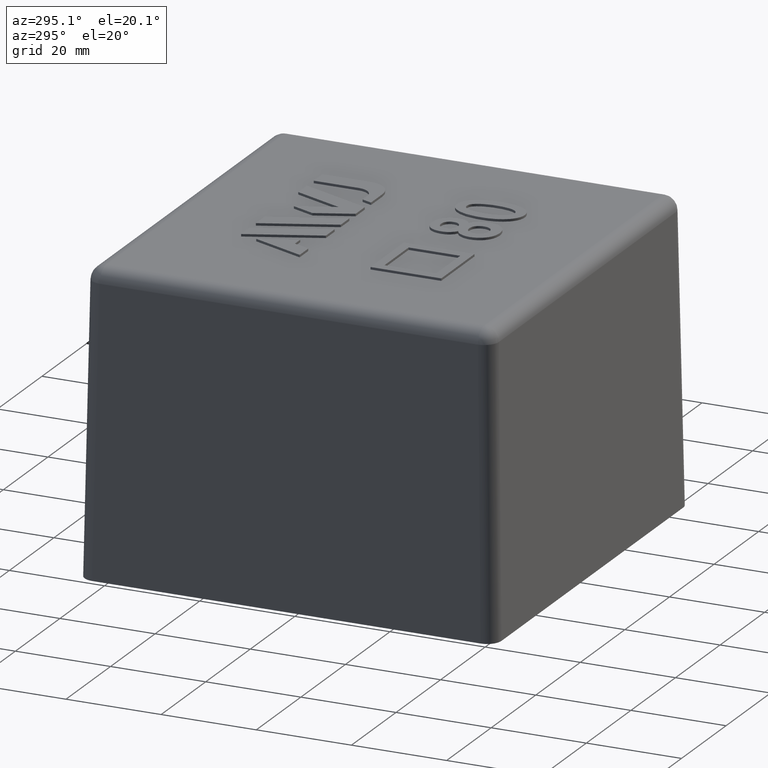
[diagram: clean part render]
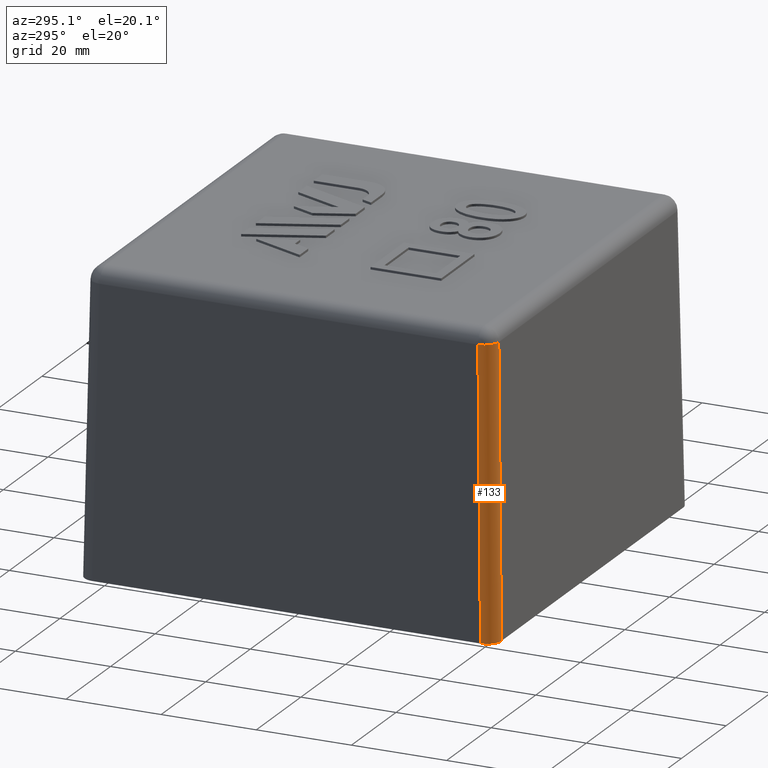
[diagram: same view with one face highlighted and labeled with its STEP entity id]
A machine part, auxiliary view. The second image highlights one B-rep face of the part: STEP entity #133.
In plain terms, the highlighted cylindrical surface (edge-blend (fillet) strip) has radius 3 mm, axis along (0.0174, 0.0174, 0.9997).
Its self-contained STEP definition (entity closure, byte-faithful):
#133 = ADVANCED_FACE( '', ( #281 ), #282, .T. );
#281 = FACE_OUTER_BOUND( '', #459, .T. );
#282 = CYLINDRICAL_SURFACE( '', #460, 3.00000000000000 );
#459 = EDGE_LOOP( '', ( #1012, #1013, #1014, #1015 ) );
#460 = AXIS2_PLACEMENT_3D( '', #1016, #1017, #1018 );
#1012 = ORIENTED_EDGE( '', *, *, #1321, .F. );
#1013 = ORIENTED_EDGE( '', *, *, #1320, .T. );
#1014 = ORIENTED_EDGE( '', *, *, #1216, .F. );
#1015 = ORIENTED_EDGE( '', *, *, #1322, .F. );
#1016 = CARTESIAN_POINT( '', ( -40.8013702566405, -40.8013702566405, -0.104682553732048 ) );
#1017 = DIRECTION( '', ( 0.0174497491606827, 0.0174497491606827, 0.999695459881888 ) );
#1018 = DIRECTION( '', ( -0.999847695156391, 0.000000000000000, 0.0174524064372835 ) );
#1216 = EDGE_CURVE( '', #1429, #1430, #1431, .T. );
#1320 = EDGE_CURVE( '', #1587, #1430, #1590, .T. );
#1321 = EDGE_CURVE( '', #1587, #1591, #1592, .F. );
#1322 = EDGE_CURVE( '', #1591, #1429, #1593, .F. );
#1429 = VERTEX_POINT( '', #1802 );
#1430 = VERTEX_POINT( '', #1803 );
#1431 = LINE( '', #1804, #1805 );
#1587 = VERTEX_POINT( '', #2151 );
#1590 = CIRCLE( '', #2155, 3.00000000000000 );
#1591 = VERTEX_POINT( '', #2156 );
#1592 = LINE( '', #2157, #2158 );
#1593 = ELLIPSE( '', #2159, 3.00091389867315, 3.00000000000000 );
#1802 = CARTESIAN_POINT( '', ( -43.8000000000000, -40.8004569145308, 0.000000000000000 ) );
#1803 = CARTESIAN_POINT( '', ( -42.7517822056444, -39.7522391201752, 60.0523572193119 ) );
#1804 = CARTESIAN_POINT( '', ( -43.8009133421097, -40.8013702566405, -0.0523253344201977 ) );
#1805 = VECTOR( '', #2306, 1000.00000000000 );
#2151 = CARTESIAN_POINT( '', ( -39.7522391201752, -42.7517822056444, 60.0523572193119 ) );
#2155 = AXIS2_PLACEMENT_3D( '', #2417, #2418, #2419 );
#2156 = CARTESIAN_POINT( '', ( -40.8004569145308, -43.8000000000000, 0.000000000000000 ) );
#2157 = CARTESIAN_POINT( '', ( -40.8013702566405, -43.8009133421097, -0.0523253344201978 ) );
#2158 = VECTOR( '', #2420, 1000.00000000000 );
#2159 = AXIS2_PLACEMENT_3D( '', #2421, #2422, #2423 );
#2306 = DIRECTION( '', ( 0.0174497491606827, 0.0174497491606827, 0.999695459881887 ) );
#2417 = CARTESIAN_POINT( '', ( -39.7522391201752, -39.7522391201752, 60.0000000000000 ) );
#2418 = DIRECTION( '', ( -0.0174497491606827, -0.0174497491606827, -0.999695459881888 ) );
#2419 = DIRECTION( '', ( -0.999847695156391, 0.000000000000000, 0.0174524064372835 ) );
#2420 = DIRECTION( '', ( 0.0174497491606827, 0.0174497491606827, 0.999695459881887 ) );
#2421 = CARTESIAN_POINT( '', ( -40.7995430158683, -40.7995430158683, 0.000000000000000 ) );
#2422 = DIRECTION( '', ( 0.000000000000000, 0.000000000000000, 1.00000000000000 ) );
#2423 = DIRECTION( '', ( -0.707106781186548, -0.707106781186548, 0.000000000000000 ) );